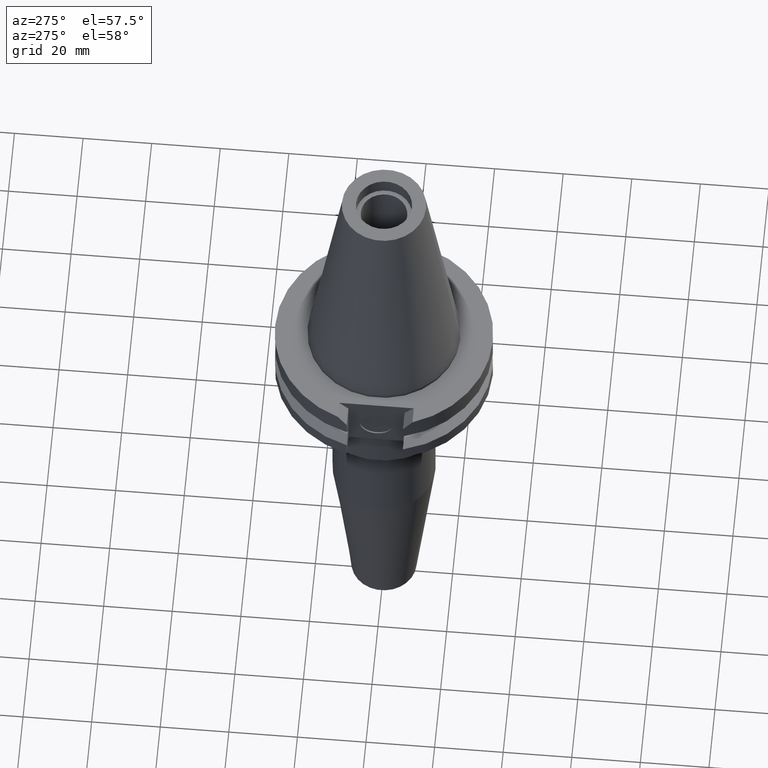
[diagram: clean part render]
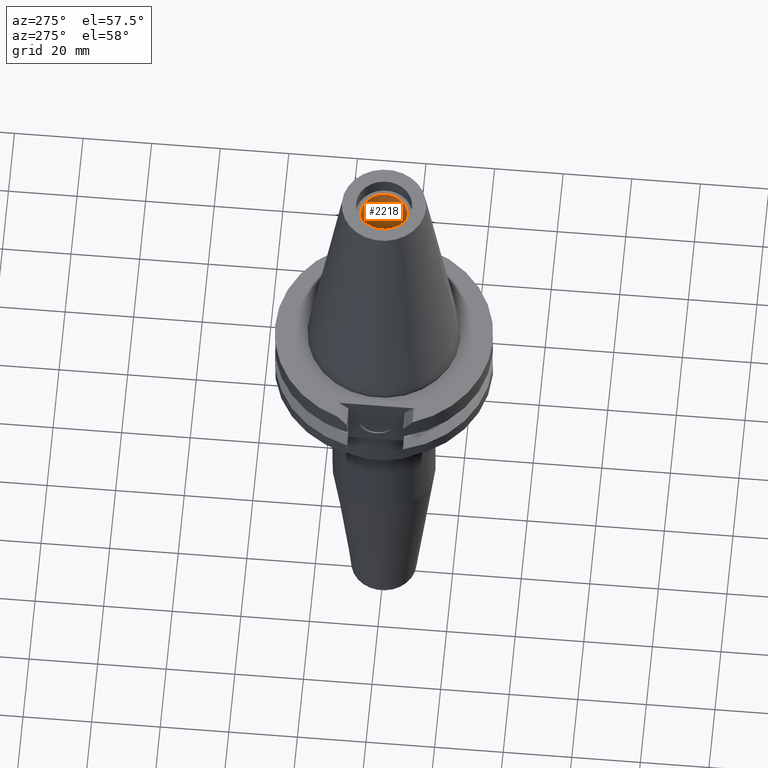
[diagram: same view with one face highlighted and labeled with its STEP entity id]
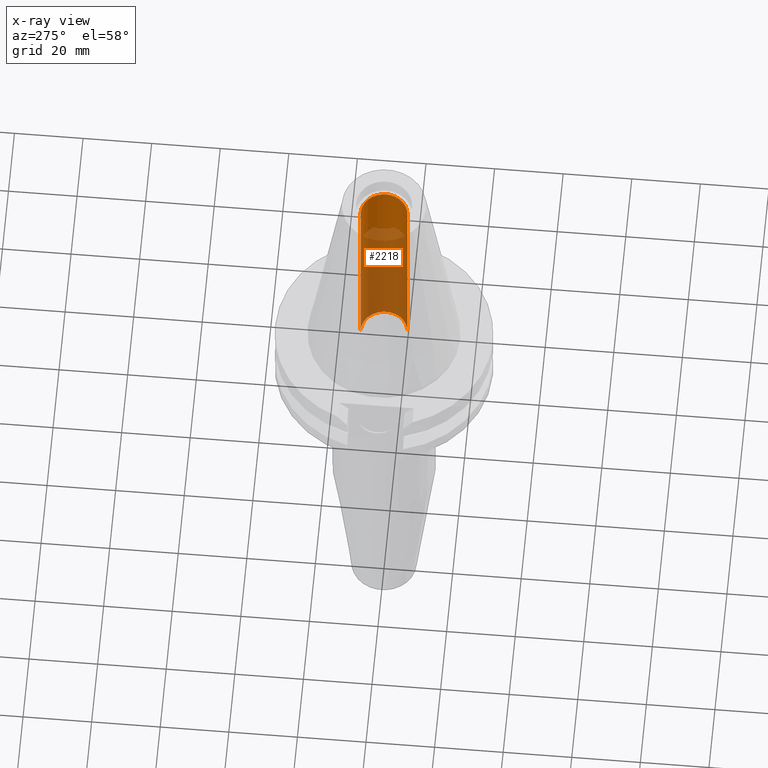
[diagram: x-ray of the same camera — body ghosted, the highlighted face saturated]
A machine part, auxiliary view. The second image highlights one B-rep face of the part: STEP entity #2218.
The next image is the same camera in x-ray: the body ghosted, the highlighted face saturated — about 71% of this face is hidden behind the body in this view.
In plain terms, the highlighted cylindrical surface (edge-blend (fillet) strip) has radius 6.8 mm, axis along (0, 0, -1).
Its self-contained STEP definition (entity closure, byte-faithful):
#1098=DIRECTION('',(0.E0,0.E0,1.E0));
#1099=VECTOR('',#1098,6.347E1);
#1100=CARTESIAN_POINT('',(0.E0,6.8E0,7.105427357601E-14));
#1101=LINE('',#1100,#1099);
#1105=CARTESIAN_POINT('',(0.E0,2.178799736533E-14,7.105427357601E-14));
#1106=DIRECTION('',(0.E0,0.E0,1.E0));
#1107=DIRECTION('',(0.E0,-1.E0,0.E0));
#1108=AXIS2_PLACEMENT_3D('',#1105,#1106,#1107);
#1113=DIRECTION('',(0.E0,0.E0,1.E0));
#1114=VECTOR('',#1113,6.347E1);
#1115=CARTESIAN_POINT('',(0.E0,-6.8E0,7.105427357601E-14));
#1116=LINE('',#1115,#1114);
#1136=CARTESIAN_POINT('',(0.E0,2.178799736533E-14,6.347E1));
#1137=DIRECTION('',(0.E0,0.E0,1.E0));
#1138=DIRECTION('',(0.E0,-1.E0,0.E0));
#1139=AXIS2_PLACEMENT_3D('',#1136,#1137,#1138);
#1178=CARTESIAN_POINT('',(0.E0,-6.8E0,6.347E1));
#1179=CARTESIAN_POINT('',(0.E0,6.8E0,6.347E1));
#1180=VERTEX_POINT('',#1178);
#1181=VERTEX_POINT('',#1179);
#1182=CARTESIAN_POINT('',(0.E0,6.8E0,7.105427357601E-14));
#1183=VERTEX_POINT('',#1182);
#1184=CARTESIAN_POINT('',(0.E0,-6.8E0,7.105427357601E-14));
#1185=VERTEX_POINT('',#1184);
#2204=CARTESIAN_POINT('',(0.E0,2.178799736533E-14,7.79125E1));
#2205=DIRECTION('',(0.E0,0.E0,-1.E0));
#2206=DIRECTION('',(0.E0,-1.E0,0.E0));
#2207=AXIS2_PLACEMENT_3D('',#2204,#2205,#2206);
#2208=CYLINDRICAL_SURFACE('',#2207,6.8E0);
#2210=ORIENTED_EDGE('',*,*,#2209,.T.);
#2212=ORIENTED_EDGE('',*,*,#2211,.F.);
#2214=ORIENTED_EDGE('',*,*,#2213,.F.);
#2215=ORIENTED_EDGE('',*,*,#2197,.T.);
#2216=EDGE_LOOP('',(#2210,#2212,#2214,#2215));
#2217=FACE_OUTER_BOUND('',#2216,.F.);
#1109=CIRCLE('',#1108,6.8E0);
#1140=CIRCLE('',#1139,6.8E0);
#2197=EDGE_CURVE('',#1185,#1183,#1109,.T.);
#2209=EDGE_CURVE('',#1183,#1181,#1101,.T.);
#2211=EDGE_CURVE('',#1180,#1181,#1140,.T.);
#2213=EDGE_CURVE('',#1185,#1180,#1116,.T.);
#2218=ADVANCED_FACE('',(#2217),#2208,.F.);